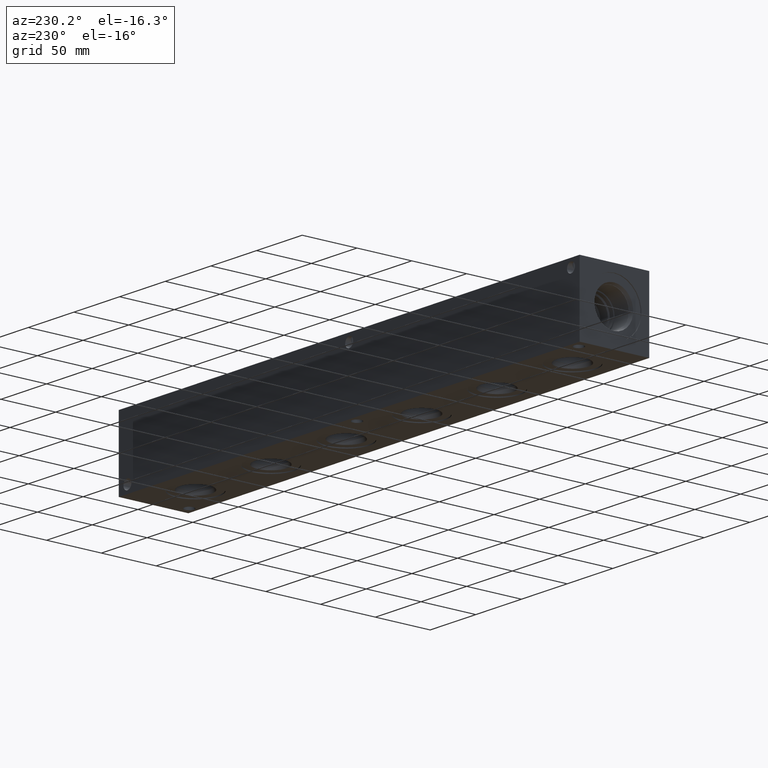
[diagram: clean part render]
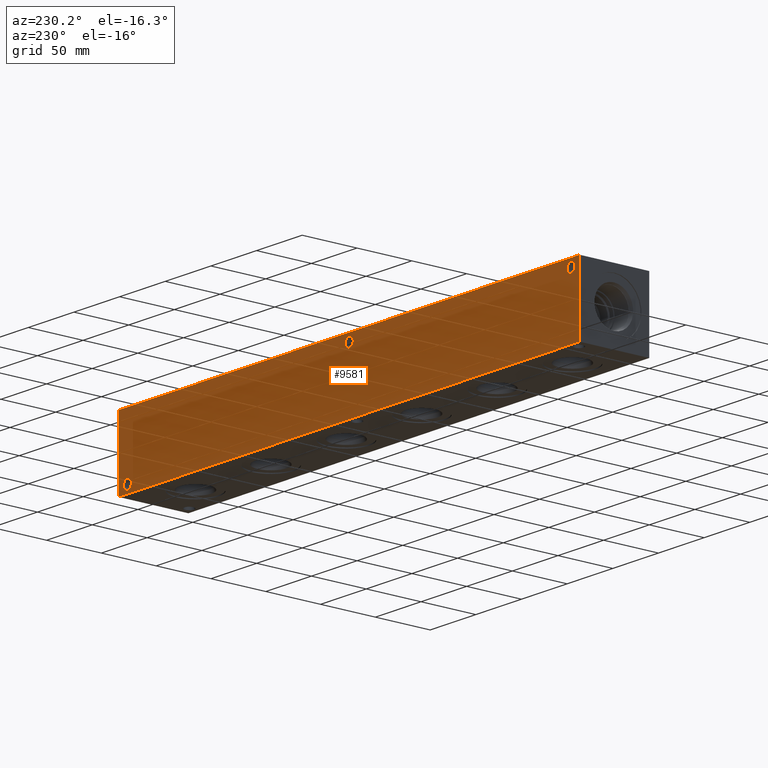
[diagram: same view with one face highlighted and labeled with its STEP entity id]
A machine part, auxiliary view. The second image highlights one B-rep face of the part: STEP entity #9581.
In plain terms, the highlighted planar face has unit normal (0, 1, 0).
Its self-contained STEP definition (entity closure, byte-faithful):
#326=CIRCLE('',#10040,4.3688);
#329=CIRCLE('',#10049,4.3688);
#332=CIRCLE('',#10058,4.3688);
#531=FACE_BOUND('',#1945,.T.);
#532=FACE_BOUND('',#1946,.T.);
#533=FACE_BOUND('',#1947,.T.);
#1389=FACE_OUTER_BOUND('',#1944,.T.);
#1944=EDGE_LOOP('',(#8493,#8494,#8495,#8496));
#1945=EDGE_LOOP('',(#8497));
#1946=EDGE_LOOP('',(#8498));
#1947=EDGE_LOOP('',(#8499));
#2250=LINE('',#14616,#3045);
#2754=LINE('',#16847,#3549);
#2755=LINE('',#16850,#3550);
#2756=LINE('',#16851,#3551);
#3045=VECTOR('',#10733,10.);
#3549=VECTOR('',#12469,10.);
#3550=VECTOR('',#12472,10.);
#3551=VECTOR('',#12473,10.);
#3867=VERTEX_POINT('',#14613);
#3868=VERTEX_POINT('',#14615);
#4316=VERTEX_POINT('',#16330);
#4321=VERTEX_POINT('',#16346);
#4326=VERTEX_POINT('',#16362);
#4460=VERTEX_POINT('',#16843);
#4462=VERTEX_POINT('',#16849);
#4931=EDGE_CURVE('',#3867,#3868,#2250,.T.);
#5580=EDGE_CURVE('',#4316,#4316,#326,.T.);
#5589=EDGE_CURVE('',#4321,#4321,#329,.T.);
#5598=EDGE_CURVE('',#4326,#4326,#332,.T.);
#5816=EDGE_CURVE('',#4460,#3868,#2754,.T.);
#5817=EDGE_CURVE('',#4462,#4460,#2755,.T.);
#5818=EDGE_CURVE('',#4462,#3867,#2756,.T.);
#8493=ORIENTED_EDGE('',*,*,#5817,.T.);
#8494=ORIENTED_EDGE('',*,*,#5816,.T.);
#8495=ORIENTED_EDGE('',*,*,#4931,.F.);
#8496=ORIENTED_EDGE('',*,*,#5818,.F.);
#8497=ORIENTED_EDGE('',*,*,#5580,.T.);
#8498=ORIENTED_EDGE('',*,*,#5589,.T.);
#8499=ORIENTED_EDGE('',*,*,#5598,.T.);
#8781=PLANE('',#10291);
#9581=ADVANCED_FACE('',(#1389,#531,#532,#533),#8781,.T.);
#10040=AXIS2_PLACEMENT_3D('',#16332,#11891,#11892);
#10049=AXIS2_PLACEMENT_3D('',#16348,#11911,#11912);
#10058=AXIS2_PLACEMENT_3D('',#16364,#11931,#11932);
#10291=AXIS2_PLACEMENT_3D('',#16848,#12470,#12471);
#10733=DIRECTION('',(-1.,0.,0.));
#11891=DIRECTION('center_axis',(0.,-1.,0.));
#11892=DIRECTION('ref_axis',(1.,0.,0.));
#11911=DIRECTION('center_axis',(0.,-1.,0.));
#11912=DIRECTION('ref_axis',(1.,0.,0.));
#11931=DIRECTION('center_axis',(0.,-1.,0.));
#11932=DIRECTION('ref_axis',(1.,0.,0.));
#12469=DIRECTION('',(0.,0.,1.));
#12470=DIRECTION('center_axis',(0.,1.,0.));
#12471=DIRECTION('ref_axis',(-1.,0.,0.));
#12472=DIRECTION('',(-1.,0.,0.));
#12473=DIRECTION('',(0.,0.,1.));
#14613=CARTESIAN_POINT('',(504.825,63.5,63.5));
#14615=CARTESIAN_POINT('',(0.,63.5,63.5));
#14616=CARTESIAN_POINT('',(504.825,63.5,63.5));
#16330=CARTESIAN_POINT('',(248.0564,63.5,56.3626));
#16332=CARTESIAN_POINT('Origin',(252.4252,63.5,56.3626));
#16346=CARTESIAN_POINT('',(5.1562,63.5,56.3626));
#16348=CARTESIAN_POINT('Origin',(9.525,63.5,56.3626));
#16362=CARTESIAN_POINT('',(490.9312,63.5,7.1374));
#16364=CARTESIAN_POINT('Origin',(495.3,63.5,7.1374));
#16843=CARTESIAN_POINT('',(0.,63.5,0.));
#16847=CARTESIAN_POINT('',(0.,63.5,0.));
#16848=CARTESIAN_POINT('Origin',(504.825,63.5,0.));
#16849=CARTESIAN_POINT('',(504.825,63.5,0.));
#16850=CARTESIAN_POINT('',(504.825,63.5,0.));
#16851=CARTESIAN_POINT('',(504.825,63.5,0.));